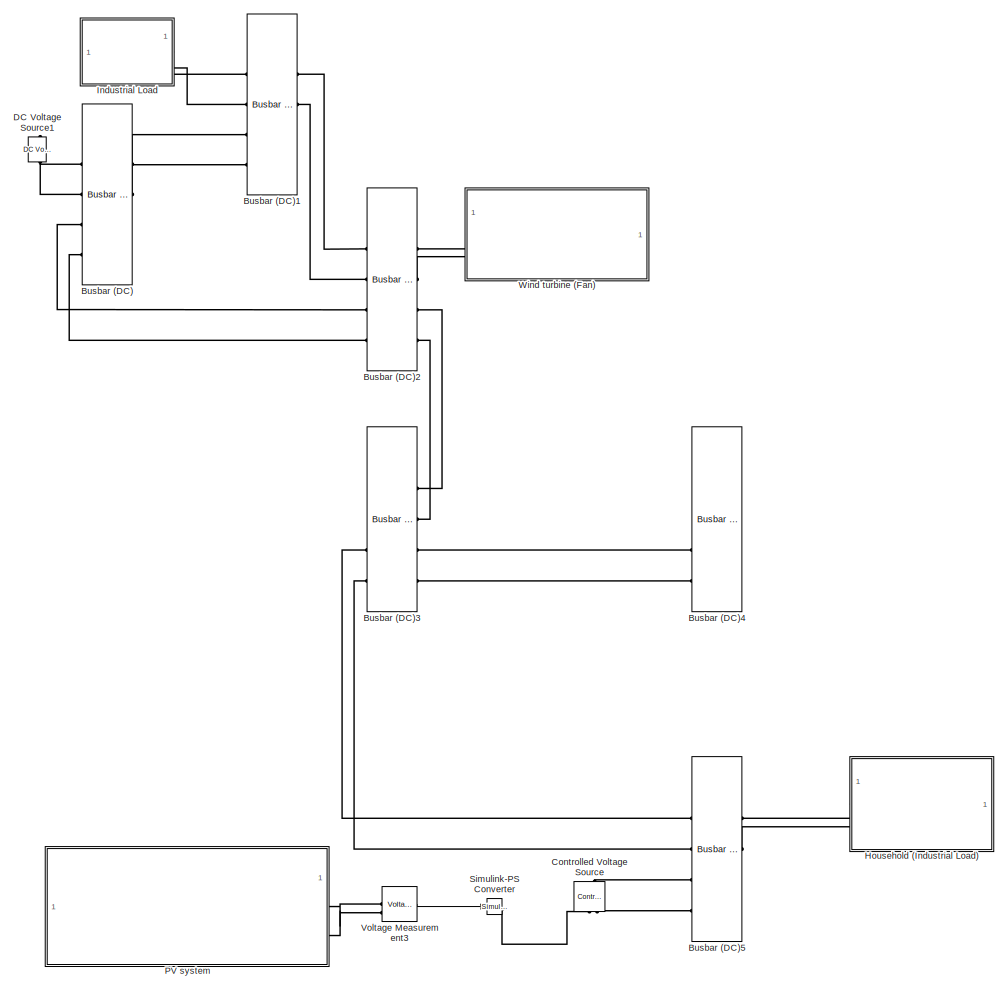
[diagram: root canvas - part 1/2, middle right region]
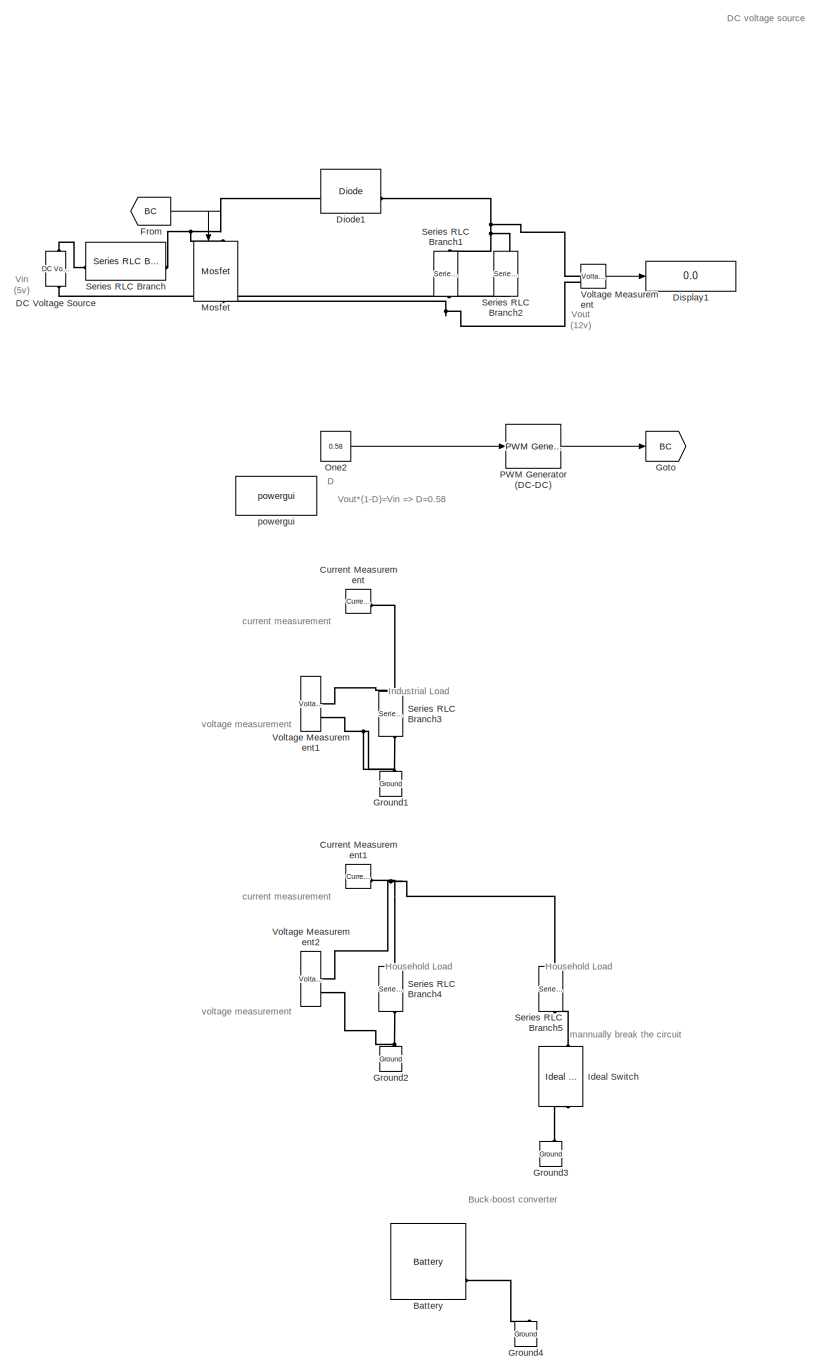
[diagram: root canvas - part 2/2, left side, full height]
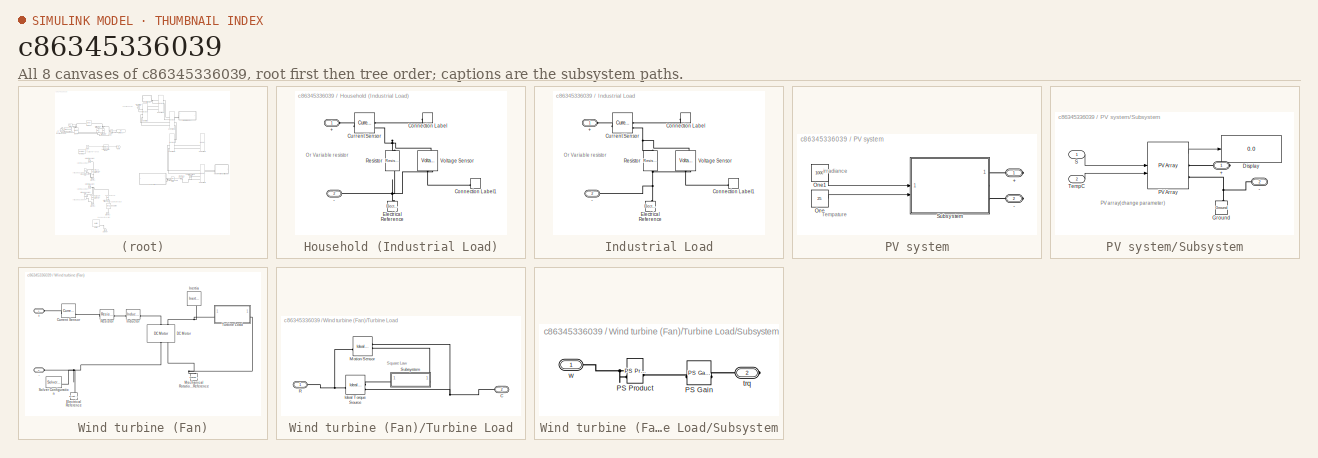
[diagram: thumbnail index - all 8 canvases of the model, root first then tree order]
MODEL slx_c86345336039
KIND model
CONFIG AbsTol = auto
CONFIG EnableMultiTasking = off
CONFIG FixedStep = auto
CONFIG MaxStep = auto
CONFIG MinStep = auto
CONFIG RelTol = 1e-3
CONFIG SampleTimeConstraint = Unconstrained
CONFIG SolverName = VariableStepAuto
CONFIG StartTime = 0.0
CONFIG StopTime = 10.0
BLOCK [Reference] Battery  REF=spsBatteryLib/Battery
  LibrarySourceBlock = sps_lib/Sources/Battery
  SourceBlock = spsBatteryLib/Battery
  SourceType = Battery
BLOCK [Reference] Busbar (DC)  REF=ee_lib/Connectors &
References/Busbar (DC)
  SourceBlock = ee_lib/Connectors &\nReferences/Busbar (DC)
  SourceType = Busbar (DC)
BLOCK [Reference] Busbar (DC)1  REF=ee_lib/Connectors &
References/Busbar (DC)
  SourceBlock = ee_lib/Connectors &\nReferences/Busbar (DC)
  SourceType = Busbar (DC)
BLOCK [Reference] Busbar (DC)2  REF=ee_lib/Connectors &
References/Busbar (DC)
  SourceBlock = ee_lib/Connectors &\nReferences/Busbar (DC)
  SourceType = Busbar (DC)
BLOCK [Reference] Busbar (DC)3  REF=ee_lib/Connectors &
References/Busbar (DC)
  SourceBlock = ee_lib/Connectors &\nReferences/Busbar (DC)
  SourceType = Busbar (DC)
BLOCK [Reference] Busbar (DC)4  REF=ee_lib/Connectors &
References/Busbar (DC)
  SourceBlock = ee_lib/Connectors &\nReferences/Busbar (DC)
  SourceType = Busbar (DC)
BLOCK [Reference] Busbar (DC)5  REF=ee_lib/Connectors &
References/Busbar (DC)
  SourceBlock = ee_lib/Connectors &\nReferences/Busbar (DC)
  SourceType = Busbar (DC)
BLOCK [Reference] Controlled Voltage Source   REF=fl_lib/Electrical/Electrical Sources/Controlled Voltage
Source
  NameLocation = top
  SourceBlock = fl_lib/Electrical/Electrical Sources/Controlled Voltage\nSource
  SourceType = Controlled Voltage\nSource
BLOCK [Reference] Current Measurement  REF=spsCurrentMeasurementLib/Current Measurement
  LibrarySourceBlock = sps_lib/Sensors and Measurements/Current Measurement
  SourceBlock = spsCurrentMeasurementLib/Current Measurement
  SourceType = Current Measurement
  UserDataPersistent = on
BLOCK [Reference] Current Measurement1  REF=spsCurrentMeasurementLib/Current Measurement
  LibrarySourceBlock = sps_lib/Sensors and Measurements/Current Measurement
  SourceBlock = spsCurrentMeasurementLib/Current Measurement
  SourceType = Current Measurement
  UserDataPersistent = on
BLOCK [Reference] DC Voltage Source  REF=spsDCVoltageSourceLib/DC Voltage Source
  LibrarySourceBlock = sps_lib/Sources/DC Voltage Source
  SourceBlock = spsDCVoltageSourceLib/DC Voltage Source
  SourceType = DC Voltage Source
BLOCK [Reference] DC Voltage Source1  REF=ee_lib/Additional
Components/SPICE Sources/DC Voltage Source
  NameLocation = right
  SourceBlock = ee_lib/Additional\nComponents/SPICE Sources/DC Voltage Source
  SourceType = DC Voltage Source
BLOCK [Reference] Diode1  REF=spsDiodeLib/Diode
  LibrarySourceBlock = sps_lib/Power Electronics/Diode
  SourceBlock = spsDiodeLib/Diode
  SourceType = Diode
BLOCK [Display] Display1
  Decimation = 1
BLOCK [From] From
  GotoTag = BC
BLOCK [Goto] Goto
  GotoTag = BC
BLOCK [Reference] Ground1  REF=spsGroundLib/Ground
  LibrarySourceBlock = sps_lib/Utilities/Ground
  NameLocation = right
  SourceBlock = spsGroundLib/Ground
  SourceType = Ground
BLOCK [Reference] Ground2  REF=spsGroundLib/Ground
  LibrarySourceBlock = sps_lib/Utilities/Ground
  NameLocation = right
  SourceBlock = spsGroundLib/Ground
  SourceType = Ground
BLOCK [Reference] Ground3  REF=spsGroundLib/Ground
  LibrarySourceBlock = sps_lib/Utilities/Ground
  NameLocation = right
  SourceBlock = spsGroundLib/Ground
  SourceType = Ground
BLOCK [Reference] Ground4  REF=spsGroundLib/Ground
  LibrarySourceBlock = sps_lib/Utilities/Ground
  NameLocation = right
  SourceBlock = spsGroundLib/Ground
  SourceType = Ground
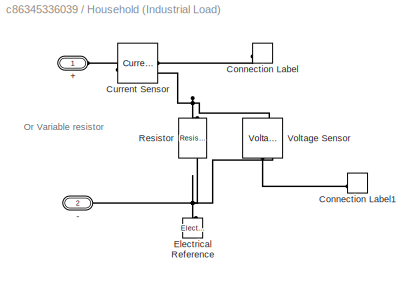
BLOCK [SubSystem] Household (Industrial Load)
BLOCK [PMIOPort] Household (Industrial Load)/+
  Side = Left
BLOCK [PMIOPort] Household (Industrial Load)/-
  Port = 2
  Side = Left
BLOCK [ConnectionLabel] Household (Industrial Load)/Connection Label
  Label = IHouse
BLOCK [ConnectionLabel] Household (Industrial Load)/Connection Label1
  Label = VHouse
BLOCK [Reference] Household (Industrial Load)/Current Sensor  REF=fl_lib/Electrical/Electrical Sensors/Current Sensor
  SourceBlock = fl_lib/Electrical/Electrical Sensors/Current Sensor
  SourceType = Current Sensor
BLOCK [Reference] Household (Industrial Load)/Electrical Reference  REF=fl_lib/Electrical/Electrical Elements/Electrical Reference
  NameLocation = right
  SourceBlock = fl_lib/Electrical/Electrical Elements/Electrical Reference
  SourceType = Electrical Reference
BLOCK [Reference] Household (Industrial Load)/Resistor  REF=fl_lib/Electrical/Electrical Elements/Resistor
  NameLocation = left
  SourceBlock = fl_lib/Electrical/Electrical Elements/Resistor
  SourceType = Resistor
BLOCK [Reference] Household (Industrial Load)/Voltage Sensor  REF=fl_lib/Electrical/Electrical Sensors/Voltage Sensor
  NameLocation = right
  SourceBlock = fl_lib/Electrical/Electrical Sensors/Voltage Sensor
  SourceType = Voltage Sensor
BLOCK [Reference] Ideal Switch  REF=spsIdealSwitchLib/Ideal Switch
  LibrarySourceBlock = sps_lib/Power Electronics/Ideal Switch
  NameLocation = left
  SourceBlock = spsIdealSwitchLib/Ideal Switch
  SourceType = Ideal Switch
BLOCK [SubSystem] Industrial Load
  NameLocation = top
BLOCK [PMIOPort] Industrial Load/+
  Side = Left
BLOCK [PMIOPort] Industrial Load/-
  Port = 2
  Side = Left
BLOCK [ConnectionLabel] Industrial Load/Connection Label
  Label = Ifactory
BLOCK [ConnectionLabel] Industrial Load/Connection Label1
  Label = Vfactory
BLOCK [Reference] Industrial Load/Current Sensor  REF=fl_lib/Electrical/Electrical Sensors/Current Sensor
  SourceBlock = fl_lib/Electrical/Electrical Sensors/Current Sensor
  SourceType = Current Sensor
BLOCK [Reference] Industrial Load/Electrical Reference  REF=fl_lib/Electrical/Electrical Elements/Electrical Reference
  NameLocation = right
  SourceBlock = fl_lib/Electrical/Electrical Elements/Electrical Reference
  SourceType = Electrical Reference
BLOCK [Reference] Industrial Load/Resistor  REF=fl_lib/Electrical/Electrical Elements/Resistor
  NameLocation = left
  SourceBlock = fl_lib/Electrical/Electrical Elements/Resistor
  SourceType = Resistor
BLOCK [Reference] Industrial Load/Voltage Sensor  REF=fl_lib/Electrical/Electrical Sensors/Voltage Sensor
  NameLocation = right
  SourceBlock = fl_lib/Electrical/Electrical Sensors/Voltage Sensor
  SourceType = Voltage Sensor
BLOCK [Reference] Mosfet  REF=spsMosfetLib/Mosfet
  LibrarySourceBlock = sps_lib/Power Electronics/Mosfet
  NameLocation = left
  SourceBlock = spsMosfetLib/Mosfet
  SourceType = Mosfet
BLOCK [Constant] One2
  OutDataTypeStr = Inherit: Inherit via back propagation
  Value = 0.58
BLOCK [SubSystem] PV system
BLOCK [PMIOPort] PV system/+
  Side = Right
BLOCK [PMIOPort] PV system/-
  Port = 2
  Side = Right
BLOCK [Constant] PV system/One
  OutDataTypeStr = Inherit: Inherit via back propagation
  Value = 25
BLOCK [Constant] PV system/One1
  OutDataTypeStr = Inherit: Inherit via back propagation
  Value = 1000
BLOCK [SubSystem] PV system/Subsystem
BLOCK [PMIOPort] PV system/Subsystem/+
  Side = Right
BLOCK [PMIOPort] PV system/Subsystem/-
  Port = 2
  Side = Right
BLOCK [Display] PV system/Subsystem/Display
  Decimation = 1
BLOCK [Reference] PV system/Subsystem/Ground  REF=spsGroundLib/Ground
  LibrarySourceBlock = sps_lib/Utilities/Ground
  NameLocation = right
  SourceBlock = spsGroundLib/Ground
  SourceType = Ground
BLOCK [Reference] PV system/Subsystem/PV Array  REF=spsPVArrayLib/PV Array
  LibrarySourceBlock = sps_lib/Sources/PV Array
  SourceBlock = spsPVArrayLib/PV Array
  SourceType = PV array
BLOCK [Inport] PV system/Subsystem/S
BLOCK [Inport] PV system/Subsystem/TempC
  Port = 2
BLOCK [Reference] PWM Generator (DC-DC)  REF=spsPWMGeneratorDCDCLib/PWM Generator
(DC-DC)
  LibrarySourceBlock = sps_lib/Power Electronics/Power Electronics Control/PWM Generator\n(DC-DC)
  SourceBlock = spsPWMGeneratorDCDCLib/PWM Generator\n(DC-DC)
  SourceType = PWM Generator (DC-DC)
BLOCK [Reference] Series RLC Branch  REF=spsSeriesRLCBranchLib/Series RLC Branch
  LibrarySourceBlock = sps_lib/Passives/Series RLC Branch
  SourceBlock = spsSeriesRLCBranchLib/Series RLC Branch
  SourceType = Series RLC Branch
BLOCK [Reference] Series RLC Branch1  REF=spsSeriesRLCBranchLib/Series RLC Branch
  LibrarySourceBlock = sps_lib/Passives/Series RLC Branch
  NameLocation = left
  SourceBlock = spsSeriesRLCBranchLib/Series RLC Branch
  SourceType = Series RLC Branch
BLOCK [Reference] Series RLC Branch2  REF=spsSeriesRLCBranchLib/Series RLC Branch
  LibrarySourceBlock = sps_lib/Passives/Series RLC Branch
  NameLocation = left
  SourceBlock = spsSeriesRLCBranchLib/Series RLC Branch
  SourceType = Series RLC Branch
BLOCK [Reference] Series RLC Branch3  REF=spsSeriesRLCBranchLib/Series RLC Branch
  LibrarySourceBlock = sps_lib/Passives/Series RLC Branch
  NameLocation = left
  SourceBlock = spsSeriesRLCBranchLib/Series RLC Branch
  SourceType = Series RLC Branch
BLOCK [Reference] Series RLC Branch4  REF=spsSeriesRLCBranchLib/Series RLC Branch
  LibrarySourceBlock = sps_lib/Passives/Series RLC Branch
  NameLocation = left
  SourceBlock = spsSeriesRLCBranchLib/Series RLC Branch
  SourceType = Series RLC Branch
BLOCK [Reference] Series RLC Branch5  REF=spsSeriesRLCBranchLib/Series RLC Branch
  LibrarySourceBlock = sps_lib/Passives/Series RLC Branch
  NameLocation = left
  SourceBlock = spsSeriesRLCBranchLib/Series RLC Branch
  SourceType = Series RLC Branch
BLOCK [Reference] Simulink-PS Converter  REF=nesl_utility/Simulink-PS
Converter
  SourceBlock = nesl_utility/Simulink-PS\nConverter
  SourceType = Simulink-PS\nConverter
BLOCK [Reference] Voltage Measurement  REF=spsVoltageMeasurementLib/Voltage Measurement
  LibrarySourceBlock = sps_lib/Sensors and Measurements/Voltage Measurement
  SourceBlock = spsVoltageMeasurementLib/Voltage Measurement
  SourceType = Voltage Measurement
  UserDataPersistent = on
BLOCK [Reference] Voltage Measurement1  REF=spsVoltageMeasurementLib/Voltage Measurement
  LibrarySourceBlock = sps_lib/Sensors and Measurements/Voltage Measurement
  SourceBlock = spsVoltageMeasurementLib/Voltage Measurement
  SourceType = Voltage Measurement
  UserDataPersistent = on
BLOCK [Reference] Voltage Measurement2  REF=spsVoltageMeasurementLib/Voltage Measurement
  LibrarySourceBlock = sps_lib/Sensors and Measurements/Voltage Measurement
  SourceBlock = spsVoltageMeasurementLib/Voltage Measurement
  SourceType = Voltage Measurement
  UserDataPersistent = on
BLOCK [Reference] Voltage Measurement3  REF=spsVoltageMeasurementLib/Voltage Measurement
  LibrarySourceBlock = sps_lib/Sensors and Measurements/Voltage Measurement
  SourceBlock = spsVoltageMeasurementLib/Voltage Measurement
  SourceType = Voltage Measurement
  UserDataPersistent = on
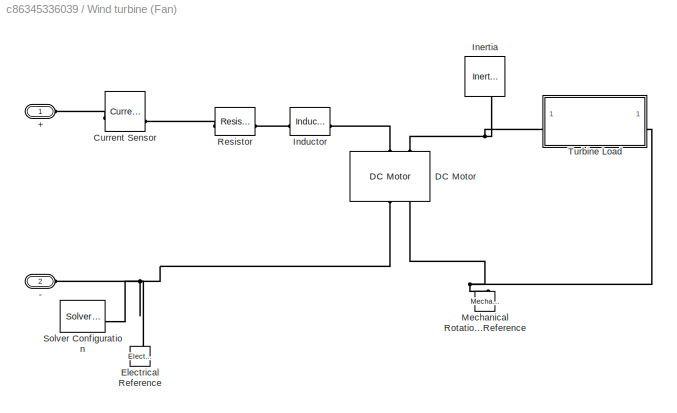
BLOCK [SubSystem] Wind turbine (Fan)
BLOCK [PMIOPort] Wind turbine (Fan)/+
  Side = Left
BLOCK [PMIOPort] Wind turbine (Fan)/-
  Port = 2
  Side = Left
BLOCK [Reference] Wind turbine (Fan)/Current Sensor  REF=fl_lib/Electrical/Electrical Sensors/Current Sensor
  SourceBlock = fl_lib/Electrical/Electrical Sensors/Current Sensor
  SourceType = Current Sensor
BLOCK [Reference] Wind turbine (Fan)/DC Motor   REF=ee_lib/Electromechanical/Brushed Motors/DC Motor
  NameLocation = right
  SourceBlock = ee_lib/Electromechanical/Brushed Motors/DC Motor
  SourceType = DC Motor
BLOCK [Reference] Wind turbine (Fan)/Electrical Reference  REF=fl_lib/Electrical/Electrical Elements/Electrical Reference
  NameLocation = right
  SourceBlock = fl_lib/Electrical/Electrical Elements/Electrical Reference
  SourceType = Electrical Reference
BLOCK [Reference] Wind turbine (Fan)/Inductor  REF=fl_lib/Electrical/Electrical Elements/Inductor
  SourceBlock = fl_lib/Electrical/Electrical Elements/Inductor
  SourceType = Inductor
BLOCK [Reference] Wind turbine (Fan)/Inertia  REF=fl_lib/Mechanical/Rotational Elements/Inertia
  NameLocation = left
  SourceBlock = fl_lib/Mechanical/Rotational Elements/Inertia
  SourceType = Inertia
BLOCK [Reference] Wind turbine (Fan)/Mechanical Rotational Reference  REF=fl_lib/Mechanical/Rotational Elements/Mechanical
Rotational Reference
  NameLocation = right
  SourceBlock = fl_lib/Mechanical/Rotational Elements/Mechanical\nRotational Reference
  SourceType = Mechanical\nRotational Reference
BLOCK [Reference] Wind turbine (Fan)/Resistor  REF=fl_lib/Electrical/Electrical Elements/Resistor
  SourceBlock = fl_lib/Electrical/Electrical Elements/Resistor
  SourceType = Resistor
BLOCK [Reference] Wind turbine (Fan)/Solver Configuration  REF=nesl_utility/Solver
Configuration
  SourceBlock = nesl_utility/Solver\nConfiguration
  SourceType = Solver\nConfiguration
BLOCK [SubSystem] Wind turbine (Fan)/Turbine Load
BLOCK [Reference] Wind turbine (Fan)/Turbine Load/ Motion Sensor  REF=fl_lib/Mechanical/Mechanical Sensors/Ideal Rotational
Motion Sensor
  NameLocation = top
  SourceBlock = fl_lib/Mechanical/Mechanical Sensors/Ideal Rotational\nMotion Sensor
  SourceType = Ideal Rotational\nMotion Sensor
BLOCK [PMIOPort] Wind turbine (Fan)/Turbine Load/C
  Port = 2
  Side = Right
BLOCK [Reference] Wind turbine (Fan)/Turbine Load/Ideal Torque Source  REF=fl_lib/Mechanical/Mechanical Sources/Ideal Torque Source
  SourceBlock = fl_lib/Mechanical/Mechanical Sources/Ideal Torque Source
  SourceType = Ideal Torque Source
BLOCK [PMIOPort] Wind turbine (Fan)/Turbine Load/R
  Side = Left
BLOCK [SubSystem] Wind turbine (Fan)/Turbine Load/Subsystem
BLOCK [Reference] Wind turbine (Fan)/Turbine Load/Subsystem/PS Gain  REF=fl_lib/Physical Signals/Functions/PS Gain
  SourceBlock = fl_lib/Physical Signals/Functions/PS Gain
  SourceType = PS Gain
BLOCK [Reference] Wind turbine (Fan)/Turbine Load/Subsystem/PS Product  REF=fl_lib/Physical Signals/Functions/PS Product
  SourceBlock = fl_lib/Physical Signals/Functions/PS Product
  SourceType = PS Product
BLOCK [PMIOPort] Wind turbine (Fan)/Turbine Load/Subsystem/trq
  Port = 2
  Side = Right
BLOCK [PMIOPort] Wind turbine (Fan)/Turbine Load/Subsystem/w
  Side = Left
BLOCK [Reference] powergui  REF=spspowerguiLib/powergui
  LibrarySourceBlock = sps_lib/powergui
  Priority = 1
  SourceBlock = spspowerguiLib/powergui
  SourceType = PSB option menu block
ANNOTATION (root): Buck-boost converter
ANNOTATION (root): D
ANNOTATION (root): DC voltage source
ANNOTATION (root): Household Load
ANNOTATION (root): Industrial Load
ANNOTATION (root): Vin (5v)
ANNOTATION (root): Vout (12v)
ANNOTATION (root): Vout*(1-D)=Vin => D=0.58
ANNOTATION (root): current measurement
ANNOTATION (root): mannually break the circuit
ANNOTATION (root): voltage measurement
ANNOTATION Household (Industrial Load): Or Variable resistor
ANNOTATION Industrial Load: Or Variable resistor
ANNOTATION PV system: Tempature
ANNOTATION PV system: irradiance
ANNOTATION PV system/Subsystem: PV array(change parameter)
ANNOTATION Wind turbine (Fan)/Turbine Load: Square Law
LINE From:1 -> Mosfet:1
LINE One2:1 -> PWM Generator (DC-DC):1
LINE PV system/One1:1 -> PV system/Subsystem:1
LINE PV system/One:1 -> PV system/Subsystem:2
LINE PV system/Subsystem/PV Array:1 -> PV system/Subsystem/Display:1
LINE PV system/Subsystem/S:1 -> PV system/Subsystem/PV Array:1
LINE PV system/Subsystem/TempC:1 -> PV system/Subsystem/PV Array:2
LINE PWM Generator (DC-DC):1 -> Goto:1
LINE Voltage Measurement3:1 -> Simulink-PS Converter:1
LINE Voltage Measurement:1 -> Display1:1
PLINE Battery:LConn2 -- Ground4:LConn1
PLINE Busbar (DC)1:LConn1 -- Industrial Load:LConn1
PLINE Busbar (DC)1:LConn2 -- Industrial Load:LConn2
PLINE Busbar (DC)1:LConn3 -- Busbar (DC):RConn1
PLINE Busbar (DC)1:LConn4 -- Busbar (DC):RConn2
PLINE Busbar (DC)1:RConn1 -- Busbar (DC)2:LConn1
PLINE Busbar (DC)1:RConn2 -- Busbar (DC)2:LConn2
PLINE Busbar (DC)2:LConn3 -- Busbar (DC):LConn3
PLINE Busbar (DC)2:LConn4 -- Busbar (DC):LConn4
PLINE Busbar (DC)2:RConn1 -- Wind turbine (Fan):LConn1
PLINE Busbar (DC)2:RConn2 -- Wind turbine (Fan):LConn2
PLINE Busbar (DC)2:RConn3 -- Busbar (DC)3:RConn1
PLINE Busbar (DC)2:RConn4 -- Busbar (DC)3:RConn2
PLINE Busbar (DC)3:LConn3 -- Busbar (DC)5:LConn1
PLINE Busbar (DC)3:LConn4 -- Busbar (DC)5:LConn2
PLINE Busbar (DC)3:RConn3 -- Busbar (DC)4:LConn3
PLINE Busbar (DC)3:RConn4 -- Busbar (DC)4:LConn4
PLINE Busbar (DC)5:LConn3 -- Controlled Voltage Source :LConn1
PLINE Busbar (DC)5:LConn4 -- Controlled Voltage Source :RConn2
PLINE Busbar (DC)5:RConn1 -- Household (Industrial Load):LConn1
PLINE Busbar (DC)5:RConn2 -- Household (Industrial Load):LConn2
PLINE Busbar (DC):LConn1 -- DC Voltage Source1:LConn1
PLINE Busbar (DC):LConn2 -- DC Voltage Source1:RConn1
PLINE Controlled Voltage Source :RConn1 -- Simulink-PS Converter:RConn1
PNET net1: Current Measurement1:RConn1 -- Series RLC Branch4:LConn1 -- Series RLC Branch5:LConn1 -- Voltage Measurement2:LConn1
PNET net2: Current Measurement:RConn1 -- Series RLC Branch3:LConn1 -- Voltage Measurement1:LConn1
PNET net3: DC Voltage Source:LConn1 -- Mosfet:RConn1 -- Series RLC Branch1:RConn1 -- Series RLC Branch2:RConn1 -- Voltage Measurement:LConn2
PLINE DC Voltage Source:RConn1 -- Series RLC Branch:LConn1
PNET net4: Diode1:LConn1 -- Mosfet:LConn1 -- Series RLC Branch:RConn1
PNET net5: Diode1:RConn1 -- Series RLC Branch1:LConn1 -- Series RLC Branch2:LConn1 -- Voltage Measurement:LConn1
PNET net6: Ground1:LConn1 -- Series RLC Branch3:RConn1 -- Voltage Measurement1:LConn2
PNET net7: Ground2:LConn1 -- Series RLC Branch4:RConn1 -- Voltage Measurement2:LConn2
PLINE Ground3:LConn1 -- Ideal Switch:RConn1
PLINE Household (Industrial Load)/+:RConn1 -- Household (Industrial Load)/Current Sensor:LConn1
PNET net8: Household (Industrial Load)/-:RConn1 -- Household (Industrial Load)/Electrical Reference:LConn1 -- Household (Industrial Load)/Resistor:RConn1 -- Household (Industrial Load)/Voltage Sensor:RConn2
PLINE Household (Industrial Load)/Connection Label1:LConn1 -- Household (Industrial Load)/Voltage Sensor:RConn1
PLINE Household (Industrial Load)/Connection Label:LConn1 -- Household (Industrial Load)/Current Sensor:RConn1
PNET net9: Household (Industrial Load)/Current Sensor:RConn2 -- Household (Industrial Load)/Resistor:LConn1 -- Household (Industrial Load)/Voltage Sensor:LConn1
PLINE Ideal Switch:LConn1 -- Series RLC Branch5:RConn1
PLINE Industrial Load/+:RConn1 -- Industrial Load/Current Sensor:LConn1
PNET net10: Industrial Load/-:RConn1 -- Industrial Load/Electrical Reference:LConn1 -- Industrial Load/Resistor:RConn1 -- Industrial Load/Voltage Sensor:RConn2
PLINE Industrial Load/Connection Label1:LConn1 -- Industrial Load/Voltage Sensor:RConn1
PLINE Industrial Load/Connection Label:LConn1 -- Industrial Load/Current Sensor:RConn1
PNET net11: Industrial Load/Current Sensor:RConn2 -- Industrial Load/Resistor:LConn1 -- Industrial Load/Voltage Sensor:LConn1
PLINE PV system/+:RConn1 -- PV system/Subsystem:RConn1
PLINE PV system/-:RConn1 -- PV system/Subsystem:RConn2
PLINE PV system/Subsystem/+:RConn1 -- PV system/Subsystem/PV Array:RConn1
PNET net12: PV system/Subsystem/-:RConn1 -- PV system/Subsystem/Ground:LConn1 -- PV system/Subsystem/PV Array:RConn2
PLINE PV system:RConn1 -- Voltage Measurement3:LConn1
PLINE PV system:RConn2 -- Voltage Measurement3:LConn2
PLINE Wind turbine (Fan)/+:RConn1 -- Wind turbine (Fan)/Current Sensor:LConn1
PNET net13: Wind turbine (Fan)/-:RConn1 -- Wind turbine (Fan)/DC Motor :RConn1 -- Wind turbine (Fan)/Electrical Reference:LConn1 -- Wind turbine (Fan)/Solver Configuration:RConn1
PLINE Wind turbine (Fan)/Current Sensor:RConn2 -- Wind turbine (Fan)/Resistor:LConn1
PLINE Wind turbine (Fan)/DC Motor :LConn1 -- Wind turbine (Fan)/Inductor:RConn1
PNET net14: Wind turbine (Fan)/DC Motor :LConn2 -- Wind turbine (Fan)/Inertia:LConn1 -- Wind turbine (Fan)/Turbine Load:LConn1
PNET net15: Wind turbine (Fan)/DC Motor :RConn2 -- Wind turbine (Fan)/Mechanical Rotational Reference:LConn1 -- Wind turbine (Fan)/Turbine Load:RConn1
PLINE Wind turbine (Fan)/Inductor:LConn1 -- Wind turbine (Fan)/Resistor:RConn1
PNET net16: Wind turbine (Fan)/Turbine Load/ Motion Sensor:LConn1 -- Wind turbine (Fan)/Turbine Load/Ideal Torque Source:LConn1 -- Wind turbine (Fan)/Turbine Load/R:RConn1
PNET net17: Wind turbine (Fan)/Turbine Load/ Motion Sensor:RConn1 -- Wind turbine (Fan)/Turbine Load/C:RConn1 -- Wind turbine (Fan)/Turbine Load/Ideal Torque Source:RConn2
PLINE Wind turbine (Fan)/Turbine Load/ Motion Sensor:RConn2 -- Wind turbine (Fan)/Turbine Load/Subsystem:LConn1
PLINE Wind turbine (Fan)/Turbine Load/Ideal Torque Source:RConn1 -- Wind turbine (Fan)/Turbine Load/Subsystem:RConn1
PLINE Wind turbine (Fan)/Turbine Load/Subsystem/PS Gain:LConn1 -- Wind turbine (Fan)/Turbine Load/Subsystem/PS Product:RConn1
PLINE Wind turbine (Fan)/Turbine Load/Subsystem/PS Gain:RConn1 -- Wind turbine (Fan)/Turbine Load/Subsystem/trq:RConn1
PNET net18: Wind turbine (Fan)/Turbine Load/Subsystem/PS Product:LConn1 -- Wind turbine (Fan)/Turbine Load/Subsystem/PS Product:LConn2 -- Wind turbine (Fan)/Turbine Load/Subsystem/w:RConn1
note: PNET lines group multi-terminal physical nets as a canonical sorted terminal list (undirected conserving connections); 2-terminal nets keep the pairwise PLINE form
